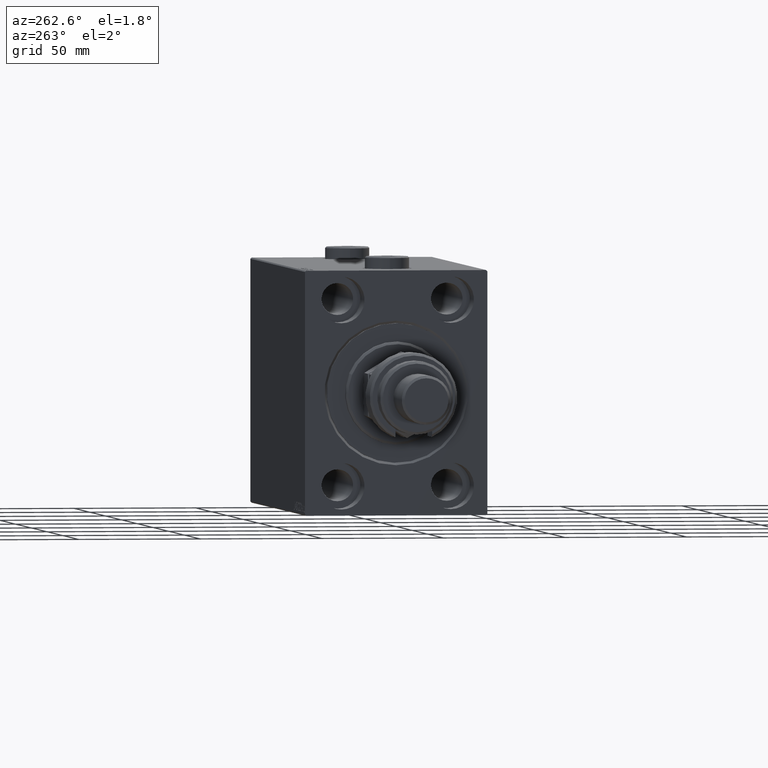
[diagram: clean part render]
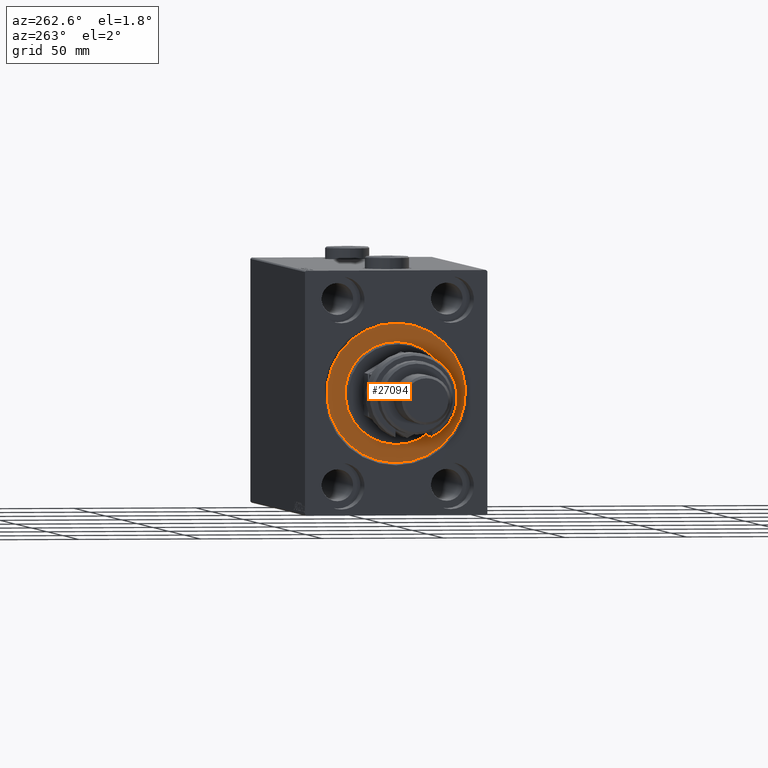
[diagram: same view with one face highlighted and labeled with its STEP entity id]
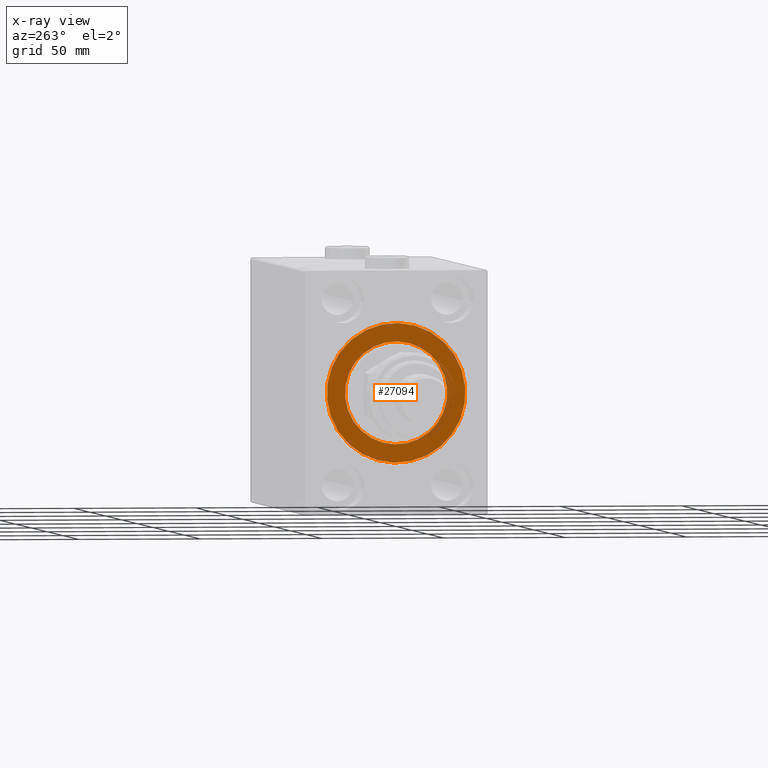
[diagram: x-ray of the same camera — body ghosted, the highlighted face saturated]
A machine part, auxiliary view. The second image highlights one B-rep face of the part: STEP entity #27094.
The next image is the same camera in x-ray: the body ghosted, the highlighted face saturated — about 10% of this face is hidden behind the body in this view.
In plain terms, the highlighted planar face has unit normal (1, 0, -0).
Its self-contained STEP definition (entity closure, byte-faithful):
#1388 = EDGE_LOOP ( 'NONE', ( #3508, #45789 ) ) ;
#1838 = CARTESIAN_POINT ( 'NONE',  ( 0.000000000000000000, 3.490243377569956456E-15, 28.50000000000000000 ) ) ;
#2215 = AXIS2_PLACEMENT_3D ( 'NONE', #3574, #40574, #18680 ) ;
#3210 = DIRECTION ( 'NONE',  ( 0.000000000000000000, 0.000000000000000000, -1.000000000000000000 ) ) ;
#3508 = ORIENTED_EDGE ( 'NONE', *, *, #11861, .F. ) ;
#3574 = CARTESIAN_POINT ( 'NONE',  ( 0.000000000000000000, 0.000000000000000000, 0.000000000000000000 ) ) ;
#6541 = CARTESIAN_POINT ( 'NONE',  ( 0.000000000000000000, 0.000000000000000000, 0.000000000000000000 ) ) ;
#7483 = CARTESIAN_POINT ( 'NONE',  ( 0.000000000000000000, 0.000000000000000000, 0.000000000000000000 ) ) ;
#9960 = FACE_BOUND ( 'NONE', #1388, .T. ) ;
#10272 = AXIS2_PLACEMENT_3D ( 'NONE', #7483, #15517, #11125 ) ;
#11125 = DIRECTION ( 'NONE',  ( 0.000000000000000000, 0.000000000000000000, 1.000000000000000000 ) ) ;
#11861 = EDGE_CURVE ( 'NONE', #46152, #20893, #47025, .T. ) ;
#13237 = ORIENTED_EDGE ( 'NONE', *, *, #45395, .F. ) ;
#15517 = DIRECTION ( 'NONE',  ( -1.000000000000000000, 0.000000000000000000, 0.000000000000000000 ) ) ;
#15590 = CIRCLE ( 'NONE', #42021, 28.50000000000000000 ) ;
#15867 = EDGE_LOOP ( 'NONE', ( #30665, #13237 ) ) ;
#18680 = DIRECTION ( 'NONE',  ( 0.000000000000000000, 0.000000000000000000, -1.000000000000000000 ) ) ;
#20893 = VERTEX_POINT ( 'NONE', #38587 ) ;
#21163 = CIRCLE ( 'NONE', #10272, 28.50000000000000000 ) ;
#22596 = DIRECTION ( 'NONE',  ( -1.000000000000000000, 0.000000000000000000, 0.000000000000000000 ) ) ;
#26001 = CARTESIAN_POINT ( 'NONE',  ( 0.000000000000000000, 0.000000000000000000, 0.000000000000000000 ) ) ;
#26022 = AXIS2_PLACEMENT_3D ( 'NONE', #40449, #47526, #3210 ) ;
#27094 = ADVANCED_FACE ( 'NONE', ( #9960, #28706 ), #35512, .F. ) ;
#27202 = EDGE_CURVE ( 'NONE', #36393, #28919, #15590, .T. ) ;
#28706 = FACE_OUTER_BOUND ( 'NONE', #15867, .T. ) ;
#28919 = VERTEX_POINT ( 'NONE', #1838 ) ;
#30665 = ORIENTED_EDGE ( 'NONE', *, *, #27202, .F. ) ;
#32676 = AXIS2_PLACEMENT_3D ( 'NONE', #6541, #39182, #43562 ) ;
#33536 = DIRECTION ( 'NONE',  ( 0.000000000000000000, 0.000000000000000000, 1.000000000000000000 ) ) ;
#35512 = PLANE ( 'NONE',  #32676 ) ;
#36393 = VERTEX_POINT ( 'NONE', #45604 ) ;
#36505 = CIRCLE ( 'NONE', #2215, 21.00000000000000000 ) ;
#37024 = EDGE_CURVE ( 'NONE', #20893, #46152, #36505, .T. ) ;
#38205 = CARTESIAN_POINT ( 'NONE',  ( 0.000000000000000000, 0.000000000000000000, 21.00000000000000000 ) ) ;
#38587 = CARTESIAN_POINT ( 'NONE',  ( 0.000000000000000000, 2.571758278209441661E-15, -21.00000000000000000 ) ) ;
#39182 = DIRECTION ( 'NONE',  ( -1.000000000000000000, 0.000000000000000000, 0.000000000000000000 ) ) ;
#40449 = CARTESIAN_POINT ( 'NONE',  ( 0.000000000000000000, 0.000000000000000000, 0.000000000000000000 ) ) ;
#40574 = DIRECTION ( 'NONE',  ( 1.000000000000000000, -0.000000000000000000, 0.000000000000000000 ) ) ;
#42021 = AXIS2_PLACEMENT_3D ( 'NONE', #26001, #22596, #33536 ) ;
#43562 = DIRECTION ( 'NONE',  ( 0.000000000000000000, 0.000000000000000000, 1.000000000000000000 ) ) ;
#45395 = EDGE_CURVE ( 'NONE', #28919, #36393, #21163, .T. ) ;
#45604 = CARTESIAN_POINT ( 'NONE',  ( 0.000000000000000000, 0.000000000000000000, -28.50000000000000000 ) ) ;
#45789 = ORIENTED_EDGE ( 'NONE', *, *, #37024, .F. ) ;
#46152 = VERTEX_POINT ( 'NONE', #38205 ) ;
#47025 = CIRCLE ( 'NONE', #26022, 21.00000000000000000 ) ;
#47526 = DIRECTION ( 'NONE',  ( 1.000000000000000000, -0.000000000000000000, 0.000000000000000000 ) ) ;